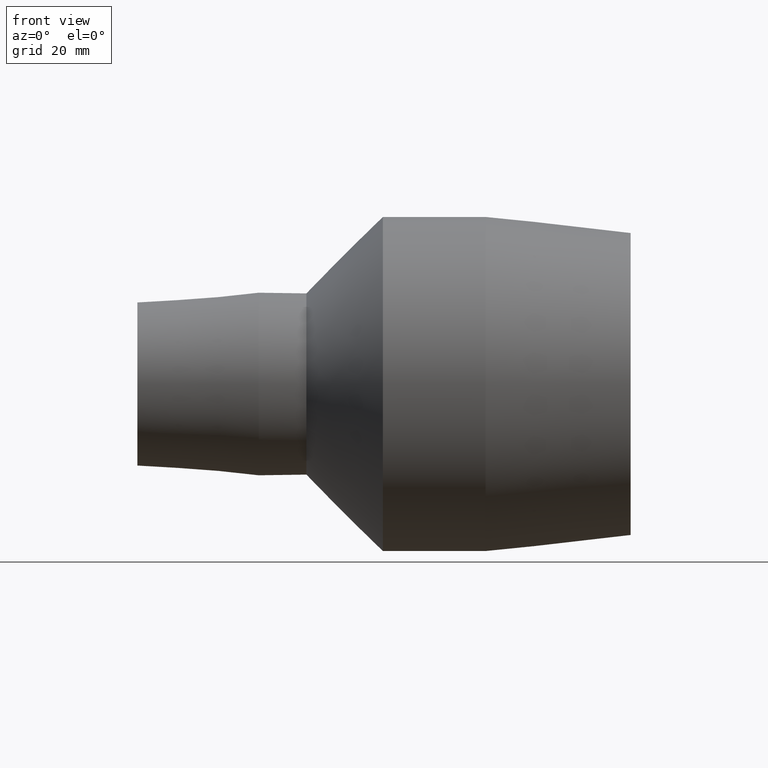
[diagram: clean part render]
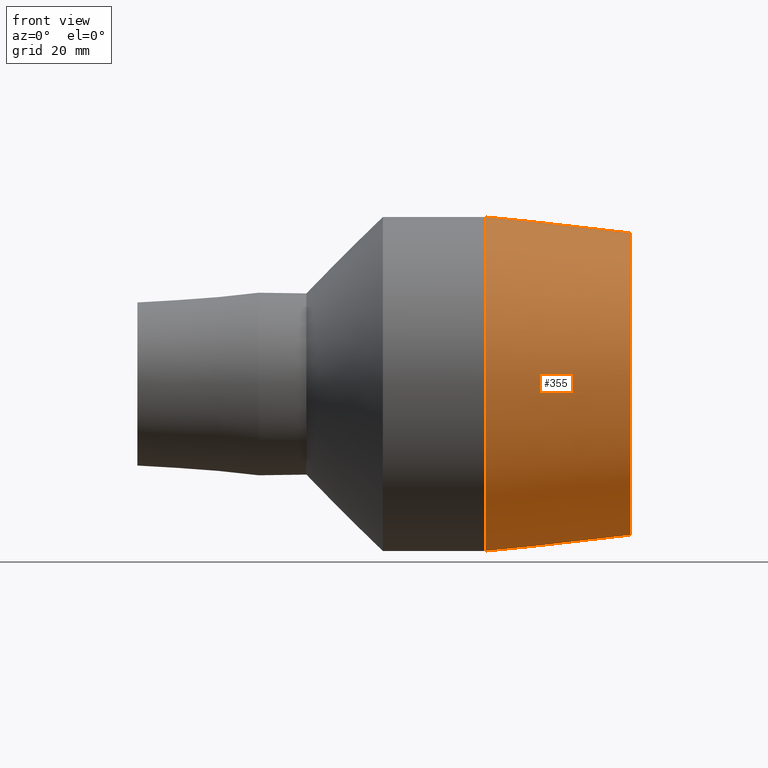
[diagram: same view with one face highlighted and labeled with its STEP entity id]
A machine part, front view. The second image highlights one B-rep face of the part: STEP entity #355.
In plain terms, the highlighted conical surface has half-angle 6.597 deg.
Its self-contained STEP definition (entity closure, byte-faithful):
#15=B_SPLINE_CURVE_WITH_KNOTS('',3,(#582,#583,#584,#585,#586,#587,#588,
#589,#590,#591,#592,#593,#594,#595,#596,#597,#598,#599,#600,#601,#602,#603,
#604,#605,#606,#607,#608,#609,#610,#611,#612,#613,#614,#615),
 .UNSPECIFIED.,.T.,.F.,(4,2,2,2,2,2,2,2,2,2,2,2,2,2,2,2,4),(0.,0.341379548688622,
0.682759097377244,1.02676356623057,1.3707680350839,1.71477250393723,2.05877697279055,
2.40015652147918,2.7415360701678,3.10901405671736,3.47649204326692,3.83561147869747,
4.19473091412802,4.55385034955857,4.91296978498913,5.28044777153869,5.64792575808824),
 .UNSPECIFIED.);
#23=CONICAL_SURFACE('',#404,32.3,6.59673829789422);
#41=FACE_BOUND('',#131,.T.);
#42=FACE_BOUND('',#132,.T.);
#85=FACE_OUTER_BOUND('',#130,.T.);
#130=EDGE_LOOP('',(#292));
#131=EDGE_LOOP('',(#293));
#132=EDGE_LOOP('',(#294));
#177=CIRCLE('',#403,34.);
#178=CIRCLE('',#405,30.6);
#199=VERTEX_POINT('',#581);
#209=VERTEX_POINT('',#692);
#210=VERTEX_POINT('',#695);
#231=EDGE_CURVE('',#199,#199,#15,.T.);
#243=EDGE_CURVE('',#209,#209,#177,.T.);
#244=EDGE_CURVE('',#210,#210,#178,.T.);
#292=ORIENTED_EDGE('',*,*,#244,.F.);
#293=ORIENTED_EDGE('',*,*,#231,.T.);
#294=ORIENTED_EDGE('',*,*,#243,.T.);
#355=ADVANCED_FACE('',(#85,#41,#42),#23,.T.);
#403=AXIS2_PLACEMENT_3D('',#693,#497,#498);
#404=AXIS2_PLACEMENT_3D('',#694,#499,#500);
#405=AXIS2_PLACEMENT_3D('',#696,#501,#502);
#497=DIRECTION('center_axis',(1.,1.83697019872103E-16,0.));
#498=DIRECTION('ref_axis',(0.,0.,-1.));
#499=DIRECTION('center_axis',(-1.,-1.83697019872103E-16,0.));
#500=DIRECTION('ref_axis',(-1.27220423054671E-16,1.,0.));
#501=DIRECTION('center_axis',(1.,1.83697019872103E-16,0.));
#502=DIRECTION('ref_axis',(0.,0.,-1.));
#581=CARTESIAN_POINT('',(35.4027349415893,30.9087565450192,-9.33656270297783));
#582=CARTESIAN_POINT('Ctrl Pts',(35.4027349415892,30.9087565450192,-9.33656270297783));
#583=CARTESIAN_POINT('Ctrl Pts',(36.5331328733349,30.7836149378333,-9.29876136145376));
#584=CARTESIAN_POINT('Ctrl Pts',(37.7362075374854,30.721119776584,-9.03387796139761));
#585=CARTESIAN_POINT('Ctrl Pts',(39.9378909214666,30.732086836466,-8.04344779818808));
#586=CARTESIAN_POINT('Ctrl Pts',(40.9366046770825,30.8013461711594,-7.31809245713061));
#587=CARTESIAN_POINT('Ctrl Pts',(42.5104633708584,30.9621167031752,-5.66988737338561));
#588=CARTESIAN_POINT('Ctrl Pts',(43.191568993408,31.0642671451412,-4.63246139614854));
#589=CARTESIAN_POINT('Ctrl Pts',(44.0937499931319,31.2135896635098,-2.37098419812558));
#590=CARTESIAN_POINT('Ctrl Pts',(44.3147353896358,31.2574795807904,-1.14668156284442));
#591=CARTESIAN_POINT('Ctrl Pts',(44.3147353896358,31.2574795807904,1.14668156284442));
#592=CARTESIAN_POINT('Ctrl Pts',(44.0937499931319,31.2135896635098,2.37098419812557));
#593=CARTESIAN_POINT('Ctrl Pts',(43.191568993408,31.0642671451412,4.63246139614854));
#594=CARTESIAN_POINT('Ctrl Pts',(42.5104633708584,30.9621167031752,5.66988737338561));
#595=CARTESIAN_POINT('Ctrl Pts',(40.9366046770825,30.8013461711594,7.31809245713061));
#596=CARTESIAN_POINT('Ctrl Pts',(39.9378909214666,30.732086836466,8.04344779818808));
#597=CARTESIAN_POINT('Ctrl Pts',(37.7362075374854,30.721119776584,9.03387796139761));
#598=CARTESIAN_POINT('Ctrl Pts',(36.5331328733349,30.7836149378333,9.29876136145376));
#599=CARTESIAN_POINT('Ctrl Pts',(34.185918182784,31.0434652175771,9.37725395389049));
#600=CARTESIAN_POINT('Ctrl Pts',(32.898574036131,31.2672711177372,9.16192999067481));
#601=CARTESIAN_POINT('Ctrl Pts',(30.5420018413033,31.8089856122825,8.22208182710308));
#602=CARTESIAN_POINT('Ctrl Pts',(29.4715019244568,32.1222940611709,7.49810138853851));
#603=CARTESIAN_POINT('Ctrl Pts',(27.7993971502621,32.6621469378746,5.831168015762));
#604=CARTESIAN_POINT('Ctrl Pts',(27.0772865061555,32.9260637262616,4.78230940277386));
#605=CARTESIAN_POINT('Ctrl Pts',(26.1132247433443,33.291793454488,2.46563887936661));
#606=CARTESIAN_POINT('Ctrl Pts',(25.8718647179358,33.3903285700346,1.19706478476851));
#607=CARTESIAN_POINT('Ctrl Pts',(25.8718647179358,33.3903285700347,-1.19706478476851));
#608=CARTESIAN_POINT('Ctrl Pts',(26.1132247433443,33.291793454488,-2.46563887936661));
#609=CARTESIAN_POINT('Ctrl Pts',(27.0772865061555,32.9260637262616,-4.78230940277386));
#610=CARTESIAN_POINT('Ctrl Pts',(27.7993971502621,32.6621469378746,-5.831168015762));
#611=CARTESIAN_POINT('Ctrl Pts',(29.4715019244568,32.1222940611709,-7.49810138853851));
#612=CARTESIAN_POINT('Ctrl Pts',(30.5420018413033,31.8089856122825,-8.22208182710308));
#613=CARTESIAN_POINT('Ctrl Pts',(32.898574036131,31.2672711177371,-9.16192999067482));
#614=CARTESIAN_POINT('Ctrl Pts',(34.185918182784,31.0434652175771,-9.37725395389049));
#615=CARTESIAN_POINT('Ctrl Pts',(35.4027349415892,30.9087565450192,-9.33656270297783));
#692=CARTESIAN_POINT('',(20.6,34.,0.));
#693=CARTESIAN_POINT('Origin',(20.6,1.29690096029705E-14,0.));
#694=CARTESIAN_POINT('Origin',(35.3,1.56693557950904E-14,0.));
#695=CARTESIAN_POINT('',(50.,30.6,0.));
#696=CARTESIAN_POINT('Origin',(50.,1.83697019872103E-14,0.));